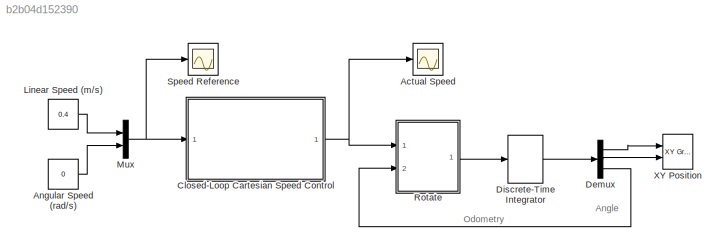
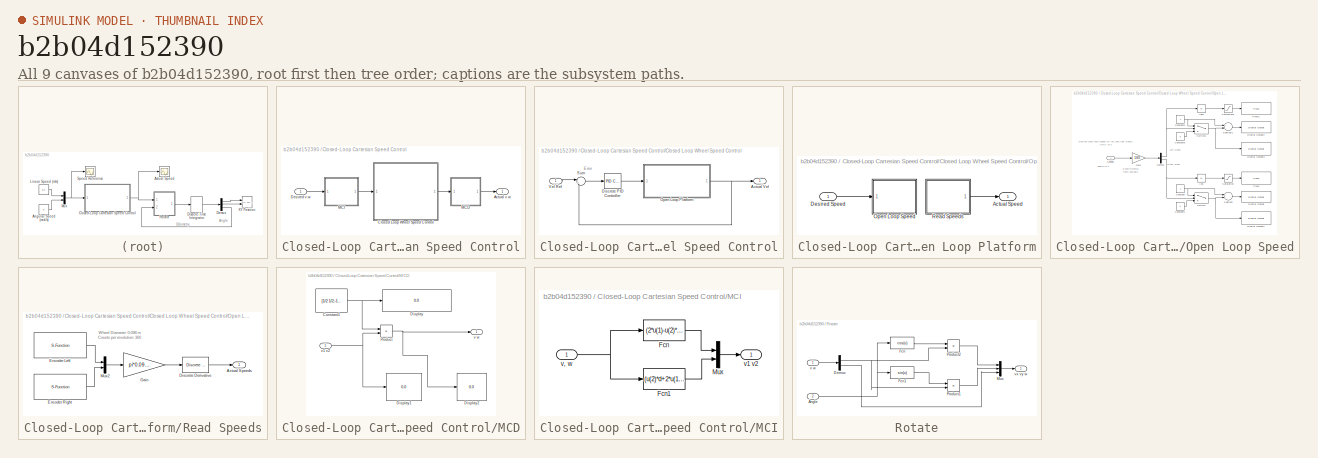
[diagram: thumbnail index - all 9 canvases of the model, root first then tree order]
MODEL slx_b2b04d152390
KIND model
BLOCK [Scope] Actual Speed
  DataFormat = StructureWithTime
  Floating = off
  NumInputPorts = 1
  Ports = [1]
  SampleTime = 0
  SaveName = ScopeData1
  ShowLegends = off
  YMax = 36
  YMin = 34.7
  ZoomMode = yonly
BLOCK [Constant] Angular Speed (rad//s)
  Value = 0
BLOCK [SubSystem] Closed-Loop Cartesian Speed Control
  FunctionWithSeparateData = off
  MaskHideContents = off
  MinAlgLoopOccurrences = off
  Opaque = off
  Ports = [1, 1]
  PropExecContextOutsideSubsystem = off
  RTWSystemCode = Auto
  RequestExecContextInheritance = off
BLOCK [Outport] Closed-Loop Cartesian Speed Control/Actual v w
  IconDisplay = Port number
BLOCK [SubSystem] Closed-Loop Cartesian Speed Control/Closed Loop Wheel Speed Control
  FunctionWithSeparateData = off
  MaskHideContents = off
  MinAlgLoopOccurrences = off
  Opaque = off
  Ports = [1, 1]
  PropExecContextOutsideSubsystem = off
  RTWSystemCode = Auto
  RequestExecContextInheritance = off
BLOCK [Outport] Closed-Loop Cartesian Speed Control/Closed Loop Wheel Speed Control/Actual Vel
  IconDisplay = Port number
BLOCK [Reference] Closed-Loop Cartesian Speed Control/Closed Loop Wheel Speed Control/Discrete PID Controller  REF=simulink/Continuous/PID Controller
  AntiWindupMode = none
  Controller = PID
  D = 0
  DOutDataTypeStr = Inherit: Inherit via internal rule
  DOutMax = []
  DOutMin = []
  DParamDataTypeStr = Inherit: Inherit via internal rule
  DParamMax = []
  DParamMin = []
  ExternalReset = none
  FilterContinuousStateAttributes = ''
  FilterMethod = Forward Euler
  FilterOutDataTypeStr = Inherit: Inherit via internal rule
  FilterOutMax = []
  FilterOutMin = []
  FilterRTWStateStorageClass = Auto
  FilterStateMustResolveToSignalObject = off
  Form = Parallel
  I = 2
  IOutDataTypeStr = Inherit: Inherit via internal rule
  IOutMax = []
  IOutMin = []
  IParamDataTypeStr = Inherit: Inherit via internal rule
  IParamMax = []
  IParamMin = []
  IgnoreLimit = off
  InitialConditionForFilter = 0
  InitialConditionForIntegrator = 0
  InitialConditionSource = internal
  IntegratorContinuousStateAttributes = ''
  IntegratorMethod = Forward Euler
  IntegratorOutDataTypeStr = Inherit: Inherit via internal rule
  IntegratorOutMax = []
  IntegratorOutMin = []
  IntegratorRTWStateStorageClass = Auto
  IntegratorStateMustResolveToSignalObject = off
  Kb = 1
  KbOutDataTypeStr = Inherit: Inherit via internal rule
  KbOutMax = []
  KbOutMin = []
  KbParamDataTypeStr = Inherit: Inherit via internal rule
  KbParamMax = []
  KbParamMin = []
  Kt = 1
  KtOutDataTypeStr = Inherit: Inherit via internal rule
  KtOutMax = []
  KtOutMin = []
  KtParamDataTypeStr = Inherit: Inherit via internal rule
  KtParamMax = []
  KtParamMin = []
  LimitOutput = off
  LinearizeAsGain = off
  LockScale = off
  LowerSaturationLimit = -inf
  N = 100
  NOutDataTypeStr = Inherit: Inherit via internal rule
  NOutMax = []
  NOutMin = []
  NParamDataTypeStr = Inherit: Inherit via internal rule
  NParamMax = []
  NParamMin = []
  P = 1
  POutDataTypeStr = Inherit: Inherit via internal rule
  POutMax = []
  POutMin = []
  PParamDataTypeStr = Inherit: Inherit via internal rule
  PParamMax = []
  PParamMin = []
  Ports = [1, 1]
  RndMeth = Floor
  SampleTime = -1
  SaturateOnIntegerOverflow = off
  SaturationOutDataTypeStr = Inherit: Same as input
  SaturationOutMax = []
  SaturationOutMin = []
  SourceBlock = simulink/Continuous/PID Controller
  SourceType = PID 1dof
  SumAccumDataTypeStr = Inherit: Inherit via internal rule
  SumDAccumDataTypeStr = Inherit: Inherit via internal rule
  SumDOutDataTypeStr = Inherit: Inherit via internal rule
  SumDOutMax = []
  SumDOutMin = []
  SumI1AccumDataTypeStr = Inherit: Inherit via internal rule
  SumI1OutDataTypeStr = Inherit: Inherit via internal rule
  SumI1OutMax = []
  SumI1OutMin = []
  SumI2AccumDataTypeStr = Inherit: Inherit via internal rule
  SumI2OutDataTypeStr = Inherit: Inherit via internal rule
  SumI2OutMax = []
  SumI2OutMin = []
  SumI3AccumDataTypeStr = Inherit: Inherit via internal rule
  SumI3OutDataTypeStr = Inherit: Inherit via internal rule
  SumI3OutMax = []
  SumI3OutMin = []
  SumOutDataTypeStr = Inherit: Inherit via internal rule
  SumOutMax = []
  SumOutMin = []
  TimeDomain = Discrete-time
  TrackingMode = off
  UpperSaturationLimit = inf
  ZeroCross = on
BLOCK [SubSystem] Closed-Loop Cartesian Speed Control/Closed Loop Wheel Speed Control/Open Loop Platform
  FunctionWithSeparateData = off
  MaskHideContents = off
  MinAlgLoopOccurrences = off
  Opaque = off
  Ports = [1, 1]
  PropExecContextOutsideSubsystem = off
  RTWSystemCode = Auto
  RequestExecContextInheritance = off
BLOCK [Outport] Closed-Loop Cartesian Speed Control/Closed Loop Wheel Speed Control/Open Loop Platform/Actual Speed
  IconDisplay = Port number
BLOCK [Inport] Closed-Loop Cartesian Speed Control/Closed Loop Wheel Speed Control/Open Loop Platform/Desired Speed
  IconDisplay = Port number
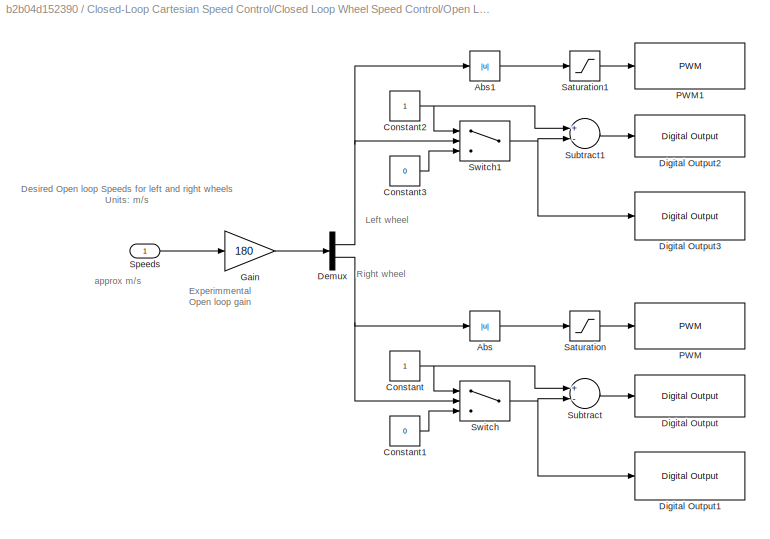
BLOCK [SubSystem] Closed-Loop Cartesian Speed Control/Closed Loop Wheel Speed Control/Open Loop Platform/Open Loop Speed
  FunctionWithSeparateData = off
  MaskHideContents = off
  MinAlgLoopOccurrences = off
  Opaque = off
  Ports = [1]
  PropExecContextOutsideSubsystem = off
  RTWSystemCode = Auto
  RequestExecContextInheritance = off
BLOCK [Abs] Closed-Loop Cartesian Speed Control/Closed Loop Wheel Speed Control/Open Loop Platform/Open Loop Speed/Abs
  SaturateOnIntegerOverflow = off
BLOCK [Abs] Closed-Loop Cartesian Speed Control/Closed Loop Wheel Speed Control/Open Loop Platform/Open Loop Speed/Abs1
  SaturateOnIntegerOverflow = off
BLOCK [Constant] Closed-Loop Cartesian Speed Control/Closed Loop Wheel Speed Control/Open Loop Platform/Open Loop Speed/Constant
BLOCK [Constant] Closed-Loop Cartesian Speed Control/Closed Loop Wheel Speed Control/Open Loop Platform/Open Loop Speed/Constant1
  Value = 0
BLOCK [Constant] Closed-Loop Cartesian Speed Control/Closed Loop Wheel Speed Control/Open Loop Platform/Open Loop Speed/Constant2
BLOCK [Constant] Closed-Loop Cartesian Speed Control/Closed Loop Wheel Speed Control/Open Loop Platform/Open Loop Speed/Constant3
  Value = 0
BLOCK [Demux] Closed-Loop Cartesian Speed Control/Closed Loop Wheel Speed Control/Open Loop Platform/Open Loop Speed/Demux
  DisplayOption = bar
  Outputs = 2
  Ports = [1, 2]
BLOCK [Reference] Closed-Loop Cartesian Speed Control/Closed Loop Wheel Speed Control/Open Loop Platform/Open Loop Speed/Digital Output  REF=arduinolib/Digital Output
  Ports = [1]
  SourceBlock = arduinolib/Digital Output
  SourceType = Arduino Digital Output
  pinNumber = 11
BLOCK [Reference] Closed-Loop Cartesian Speed Control/Closed Loop Wheel Speed Control/Open Loop Platform/Open Loop Speed/Digital Output1  REF=arduinolib/Digital Output
  Ports = [1]
  SourceBlock = arduinolib/Digital Output
  SourceType = Arduino Digital Output
  pinNumber = 12
BLOCK [Reference] Closed-Loop Cartesian Speed Control/Closed Loop Wheel Speed Control/Open Loop Platform/Open Loop Speed/Digital Output2  REF=arduinolib/Digital Output
  Ports = [1]
  SourceBlock = arduinolib/Digital Output
  SourceType = Arduino Digital Output
  pinNumber = 9
BLOCK [Reference] Closed-Loop Cartesian Speed Control/Closed Loop Wheel Speed Control/Open Loop Platform/Open Loop Speed/Digital Output3  REF=arduinolib/Digital Output
  Ports = [1]
  SourceBlock = arduinolib/Digital Output
  SourceType = Arduino Digital Output
  pinNumber = 10
BLOCK [Gain] Closed-Loop Cartesian Speed Control/Closed Loop Wheel Speed Control/Open Loop Platform/Open Loop Speed/Gain
  Gain = 180
  OutDataTypeStr = Inherit: Inherit via internal rule
  ParamDataTypeStr = Inherit: Inherit via internal rule
  SaturateOnIntegerOverflow = off
BLOCK [Reference] Closed-Loop Cartesian Speed Control/Closed Loop Wheel Speed Control/Open Loop Platform/Open Loop Speed/PWM  REF=arduinolib/PWM
  Ports = [1]
  SourceBlock = arduinolib/PWM
  SourceType = Arduino PWM
  pinNumber = 13
BLOCK [Reference] Closed-Loop Cartesian Speed Control/Closed Loop Wheel Speed Control/Open Loop Platform/Open Loop Speed/PWM1  REF=arduinolib/PWM
  Ports = [1]
  SourceBlock = arduinolib/PWM
  SourceType = Arduino PWM
  pinNumber = 8
BLOCK [Saturate] Closed-Loop Cartesian Speed Control/Closed Loop Wheel Speed Control/Open Loop Platform/Open Loop Speed/Saturation
  InputPortMap = u0
  LowerLimit = 0
  OutDataTypeStr = uint8
  Ports = [1, 1]
  UpperLimit = 255
BLOCK [Saturate] Closed-Loop Cartesian Speed Control/Closed Loop Wheel Speed Control/Open Loop Platform/Open Loop Speed/Saturation1
  InputPortMap = u0
  LowerLimit = 0
  OutDataTypeStr = uint8
  Ports = [1, 1]
  UpperLimit = 255
BLOCK [Inport] Closed-Loop Cartesian Speed Control/Closed Loop Wheel Speed Control/Open Loop Platform/Open Loop Speed/Speeds
  IconDisplay = Port number
BLOCK [Sum] Closed-Loop Cartesian Speed Control/Closed Loop Wheel Speed Control/Open Loop Platform/Open Loop Speed/Subtract
  InputSameDT = off
  Inputs = +-
  OutDataTypeStr = Inherit: Inherit via internal rule
  Ports = [2, 1]
  SaturateOnIntegerOverflow = off
BLOCK [Sum] Closed-Loop Cartesian Speed Control/Closed Loop Wheel Speed Control/Open Loop Platform/Open Loop Speed/Subtract1
  InputSameDT = off
  Inputs = +-
  OutDataTypeStr = Inherit: Inherit via internal rule
  Ports = [2, 1]
  SaturateOnIntegerOverflow = off
BLOCK [Switch] Closed-Loop Cartesian Speed Control/Closed Loop Wheel Speed Control/Open Loop Platform/Open Loop Speed/Switch
  Criteria = u2 > Threshold
  InputSameDT = off
  SaturateOnIntegerOverflow = off
BLOCK [Switch] Closed-Loop Cartesian Speed Control/Closed Loop Wheel Speed Control/Open Loop Platform/Open Loop Speed/Switch1
  Criteria = u2 > Threshold
  InputSameDT = off
  SaturateOnIntegerOverflow = off
BLOCK [SubSystem] Closed-Loop Cartesian Speed Control/Closed Loop Wheel Speed Control/Open Loop Platform/Read Speeds
  FunctionWithSeparateData = off
  MaskHideContents = off
  MinAlgLoopOccurrences = off
  Opaque = off
  Ports = [0, 1]
  PropExecContextOutsideSubsystem = off
  RTWSystemCode = Auto
  RequestExecContextInheritance = off
BLOCK [Outport] Closed-Loop Cartesian Speed Control/Closed Loop Wheel Speed Control/Open Loop Platform/Read Speeds/Actual Speeds
  IconDisplay = Port number
BLOCK [Reference] Closed-Loop Cartesian Speed Control/Closed Loop Wheel Speed Control/Open Loop Platform/Read Speeds/Discrete Derivative  REF=simulink/Discrete/Discrete Derivative
  DoSatur = off
  ICPrevScaledInput = 0.0
  InputProcessing = Inherited
  LockScale = off
  OutDataType = fixdt(1, 16)
  OutDataTypeStr = Inherit: Inherit via internal rule
  OutMax = []
  OutMin = []
  OutScaling = 2^-10
  OutputDataTypeScalingMode = Inherit via internal rule
  Ports = [1, 1]
  RndMeth = Floor
  SourceBlock = simulink/Discrete/Discrete Derivative
  SourceType = Discrete Derivative
  gainval = 1.0
BLOCK [S-Function] Closed-Loop Cartesian Speed Control/Closed Loop Wheel Speed Control/Open Loop Platform/Read Speeds/Encoder Left
  CopyFcn = set_param(gcbh,'LinkStatus','none')
  EnableBusSupport = off
  FunctionName = sfcn_encoder
  InitFcn = try, set_param(gcb,'FunctionName','sfcn_encoder'), end
  OpenFcn = sfunctionwizard(gcbh)
  Parameters = uint8(0),uint8(3),uint8(2)
  Ports = [0, 1]
  PreSaveFcn = try, set_param(gcb,'FunctionName','sfcn_encoder'), end
  SFunctionModules = sfcn_encoder_wrapper
BLOCK [S-Function] Closed-Loop Cartesian Speed Control/Closed Loop Wheel Speed Control/Open Loop Platform/Read Speeds/Encoder Right
  CopyFcn = set_param(gcbh,'LinkStatus','none')
  EnableBusSupport = off
  FunctionName = sfcn_encoder
  InitFcn = try, set_param(gcb,'FunctionName','sfcn_encoder'), end
  OpenFcn = sfunctionwizard(gcbh)
  Parameters = uint8(1),uint8(19),uint8(18)
  Ports = [0, 1]
  PreSaveFcn = try, set_param(gcb,'FunctionName','sfcn_encoder'), end
  SFunctionModules = sfcn_encoder_wrapper
BLOCK [Gain] Closed-Loop Cartesian Speed Control/Closed Loop Wheel Speed Control/Open Loop Platform/Read Speeds/Gain
  Gain = pi*0.098/360
  OutDataTypeStr = double
  ParamDataTypeStr = Inherit: Inherit via internal rule
  SaturateOnIntegerOverflow = off
BLOCK [Mux] Closed-Loop Cartesian Speed Control/Closed Loop Wheel Speed Control/Open Loop Platform/Read Speeds/Mux2
  DisplayOption = bar
  Inputs = 2
  Ports = [2, 1]
BLOCK [Sum] Closed-Loop Cartesian Speed Control/Closed Loop Wheel Speed Control/Sum
  IconShape = round
  InputSameDT = off
  Inputs = |+-
  OutDataTypeStr = Inherit: Inherit via internal rule
  Ports = [2, 1]
  SaturateOnIntegerOverflow = off
BLOCK [Inport] Closed-Loop Cartesian Speed Control/Closed Loop Wheel Speed Control/Vel Ref
  IconDisplay = Port number
BLOCK [Inport] Closed-Loop Cartesian Speed Control/Desired v w
  IconDisplay = Port number
BLOCK [SubSystem] Closed-Loop Cartesian Speed Control/MCD
  FunctionWithSeparateData = off
  MaskHideContents = off
  MinAlgLoopOccurrences = off
  Opaque = off
  Ports = [1, 1]
  PropExecContextOutsideSubsystem = off
  RTWSystemCode = Auto
  RequestExecContextInheritance = off
BLOCK [Constant] Closed-Loop Cartesian Speed Control/MCD/Constant1
  Value = [1/2 1/2;-1/d 1/d]
  VectorParams1D = off
BLOCK [Display] Closed-Loop Cartesian Speed Control/MCD/Display
  Decimation = 1
  Ports = [1]
BLOCK [Display] Closed-Loop Cartesian Speed Control/MCD/Display1
  Decimation = 1
  Ports = [1]
BLOCK [Display] Closed-Loop Cartesian Speed Control/MCD/Display2
  Decimation = 1
  Ports = [1]
BLOCK [Product] Closed-Loop Cartesian Speed Control/MCD/Product
  InputSameDT = off
  Multiplication = Matrix(*)
  OutDataTypeStr = Inherit: Inherit via internal rule
  Ports = [2, 1]
  RndMeth = Floor
  SaturateOnIntegerOverflow = off
BLOCK [Outport] Closed-Loop Cartesian Speed Control/MCD/v w
  IconDisplay = Port number
BLOCK [Inport] Closed-Loop Cartesian Speed Control/MCD/v1 v2
  IconDisplay = Port number
BLOCK [SubSystem] Closed-Loop Cartesian Speed Control/MCI
  FunctionWithSeparateData = off
  MaskHideContents = off
  MinAlgLoopOccurrences = off
  Opaque = off
  Ports = [1, 1]
  PropExecContextOutsideSubsystem = off
  RTWSystemCode = Auto
  RequestExecContextInheritance = off
BLOCK [Fcn] Closed-Loop Cartesian Speed Control/MCI/Fcn
  Expr = (2*u(1)-u(2)*d)/2
BLOCK [Fcn] Closed-Loop Cartesian Speed Control/MCI/Fcn1
  Expr = (u(2)*d+2*u(1))/2
BLOCK [Mux] Closed-Loop Cartesian Speed Control/MCI/Mux
  DisplayOption = bar
  Inputs = 2
  Ports = [2, 1]
BLOCK [Inport] Closed-Loop Cartesian Speed Control/MCI/v, w
  IconDisplay = Port number
BLOCK [Outport] Closed-Loop Cartesian Speed Control/MCI/v1 v2
  IconDisplay = Port number
BLOCK [Demux] Demux
  DisplayOption = bar
  Outputs = 3
  Ports = [1, 3]
BLOCK [DiscreteIntegrator] Discrete-Time Integrator
  ICPrevOutput = DiscIntNeverNeededParam
  ICPrevScaledInput = DiscIntNeverNeededParam
  Ports = [1, 1]
  SampleTime = -1
BLOCK [Constant] Linear Speed (m//s)
  Value = 0.4
BLOCK [Mux] Mux
  DisplayOption = bar
  Inputs = 2
  Ports = [2, 1]
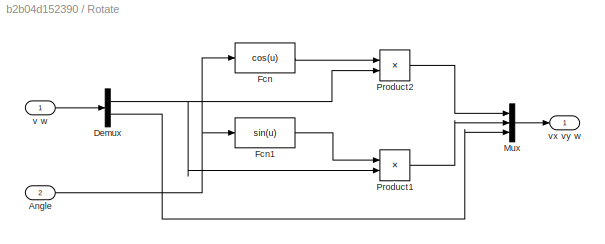
BLOCK [SubSystem] Rotate
  FunctionWithSeparateData = off
  MaskHideContents = off
  MinAlgLoopOccurrences = off
  Opaque = off
  Ports = [2, 1]
  PropExecContextOutsideSubsystem = off
  RTWSystemCode = Auto
  RequestExecContextInheritance = off
BLOCK [Inport] Rotate/Angle
  IconDisplay = Port number
  Port = 2
BLOCK [Demux] Rotate/Demux
  DisplayOption = bar
  Outputs = 2
  Ports = [1, 2]
BLOCK [Fcn] Rotate/Fcn
  Expr = cos(u)
BLOCK [Fcn] Rotate/Fcn1
  Expr = sin(u)
BLOCK [Mux] Rotate/Mux
  DisplayOption = bar
  Inputs = 3
  Ports = [3, 1]
BLOCK [Product] Rotate/Product1
  InputSameDT = off
  OutDataTypeStr = Inherit: Inherit via internal rule
  Ports = [2, 1]
  RndMeth = Floor
  SaturateOnIntegerOverflow = off
BLOCK [Product] Rotate/Product2
  InputSameDT = off
  OutDataTypeStr = Inherit: Inherit via internal rule
  Ports = [2, 1]
  RndMeth = Floor
  SaturateOnIntegerOverflow = off
BLOCK [Inport] Rotate/v w
  IconDisplay = Port number
BLOCK [Outport] Rotate/vx vy w
  IconDisplay = Port number
BLOCK [Scope] Speed Reference
  DataFormat = StructureWithTime
  Floating = off
  NumInputPorts = 1
  Ports = [1]
  SampleTime = 0
  SaveName = ScopeData2
  ShowLegends = off
  YMax = 36
  YMin = 34.7
  ZoomMode = yonly
BLOCK [Reference] XY Position  REF=simulink/Sinks/XY Graph
  Ports = [2]
  SourceBlock = simulink/Sinks/XY Graph
  SourceType = XY scope.
  st = -1
  xmax = 100
  xmin = -100
  ymax = 100
  ymin = -100
ANNOTATION (root): Angle
ANNOTATION (root): Odometry
ANNOTATION Closed-Loop Cartesian Speed Control/Closed Loop Wheel Speed Control: Error
ANNOTATION Closed-Loop Cartesian Speed Control/Closed Loop Wheel Speed Control/Open Loop Platform/Open Loop Speed: Desired Open loop Speeds for left and right wheels Units: m/s
ANNOTATION Closed-Loop Cartesian Speed Control/Closed Loop Wheel Speed Control/Open Loop Platform/Open Loop Speed: Experimmental Open loop gain
ANNOTATION Closed-Loop Cartesian Speed Control/Closed Loop Wheel Speed Control/Open Loop Platform/Open Loop Speed: Left wheel
ANNOTATION Closed-Loop Cartesian Speed Control/Closed Loop Wheel Speed Control/Open Loop Platform/Open Loop Speed: Right wheel
ANNOTATION Closed-Loop Cartesian Speed Control/Closed Loop Wheel Speed Control/Open Loop Platform/Open Loop Speed: approx m/s
ANNOTATION Closed-Loop Cartesian Speed Control/Closed Loop Wheel Speed Control/Open Loop Platform/Read Speeds: Wheel Diameter: 0.098 m Counts per revolution: 360
LINE Angular Speed (rad//s):1 -> Mux:2
LINE Closed-Loop Cartesian Speed Control/Closed Loop Wheel Speed Control/Discrete PID Controller:1 -> Closed-Loop Cartesian Speed Control/Closed Loop Wheel Speed Control/Open Loop Platform:1
LINE Closed-Loop Cartesian Speed Control/Closed Loop Wheel Speed Control/Open Loop Platform/Desired Speed:1 -> Closed-Loop Cartesian Speed Control/Closed Loop Wheel Speed Control/Open Loop Platform/Open Loop Speed:1
LINE Closed-Loop Cartesian Speed Control/Closed Loop Wheel Speed Control/Open Loop Platform/Open Loop Speed/Abs1:1 -> Closed-Loop Cartesian Speed Control/Closed Loop Wheel Speed Control/Open Loop Platform/Open Loop Speed/Saturation1:1
LINE Closed-Loop Cartesian Speed Control/Closed Loop Wheel Speed Control/Open Loop Platform/Open Loop Speed/Abs:1 -> Closed-Loop Cartesian Speed Control/Closed Loop Wheel Speed Control/Open Loop Platform/Open Loop Speed/Saturation:1
LINE Closed-Loop Cartesian Speed Control/Closed Loop Wheel Speed Control/Open Loop Platform/Open Loop Speed/Constant1:1 -> Closed-Loop Cartesian Speed Control/Closed Loop Wheel Speed Control/Open Loop Platform/Open Loop Speed/Switch:3
NET Closed-Loop Cartesian Speed Control/Closed Loop Wheel Speed Control/Open Loop Platform/Open Loop Speed/Constant2:1 -> Closed-Loop Cartesian Speed Control/Closed Loop Wheel Speed Control/Open Loop Platform/Open Loop Speed/Subtract1:1, Closed-Loop Cartesian Speed Control/Closed Loop Wheel Speed Control/Open Loop Platform/Open Loop Speed/Switch1:1
LINE Closed-Loop Cartesian Speed Control/Closed Loop Wheel Speed Control/Open Loop Platform/Open Loop Speed/Constant3:1 -> Closed-Loop Cartesian Speed Control/Closed Loop Wheel Speed Control/Open Loop Platform/Open Loop Speed/Switch1:3
NET Closed-Loop Cartesian Speed Control/Closed Loop Wheel Speed Control/Open Loop Platform/Open Loop Speed/Constant:1 -> Closed-Loop Cartesian Speed Control/Closed Loop Wheel Speed Control/Open Loop Platform/Open Loop Speed/Subtract:1, Closed-Loop Cartesian Speed Control/Closed Loop Wheel Speed Control/Open Loop Platform/Open Loop Speed/Switch:1
NET Closed-Loop Cartesian Speed Control/Closed Loop Wheel Speed Control/Open Loop Platform/Open Loop Speed/Demux:1 -> Closed-Loop Cartesian Speed Control/Closed Loop Wheel Speed Control/Open Loop Platform/Open Loop Speed/Abs1:1, Closed-Loop Cartesian Speed Control/Closed Loop Wheel Speed Control/Open Loop Platform/Open Loop Speed/Switch1:2
NET Closed-Loop Cartesian Speed Control/Closed Loop Wheel Speed Control/Open Loop Platform/Open Loop Speed/Demux:2 -> Closed-Loop Cartesian Speed Control/Closed Loop Wheel Speed Control/Open Loop Platform/Open Loop Speed/Abs:1, Closed-Loop Cartesian Speed Control/Closed Loop Wheel Speed Control/Open Loop Platform/Open Loop Speed/Switch:2
LINE Closed-Loop Cartesian Speed Control/Closed Loop Wheel Speed Control/Open Loop Platform/Open Loop Speed/Gain:1 -> Closed-Loop Cartesian Speed Control/Closed Loop Wheel Speed Control/Open Loop Platform/Open Loop Speed/Demux:1
LINE Closed-Loop Cartesian Speed Control/Closed Loop Wheel Speed Control/Open Loop Platform/Open Loop Speed/Saturation1:1 -> Closed-Loop Cartesian Speed Control/Closed Loop Wheel Speed Control/Open Loop Platform/Open Loop Speed/PWM1:1
LINE Closed-Loop Cartesian Speed Control/Closed Loop Wheel Speed Control/Open Loop Platform/Open Loop Speed/Saturation:1 -> Closed-Loop Cartesian Speed Control/Closed Loop Wheel Speed Control/Open Loop Platform/Open Loop Speed/PWM:1
LINE Closed-Loop Cartesian Speed Control/Closed Loop Wheel Speed Control/Open Loop Platform/Open Loop Speed/Speeds:1 -> Closed-Loop Cartesian Speed Control/Closed Loop Wheel Speed Control/Open Loop Platform/Open Loop Speed/Gain:1
LINE Closed-Loop Cartesian Speed Control/Closed Loop Wheel Speed Control/Open Loop Platform/Open Loop Speed/Subtract1:1 -> Closed-Loop Cartesian Speed Control/Closed Loop Wheel Speed Control/Open Loop Platform/Open Loop Speed/Digital Output2:1
LINE Closed-Loop Cartesian Speed Control/Closed Loop Wheel Speed Control/Open Loop Platform/Open Loop Speed/Subtract:1 -> Closed-Loop Cartesian Speed Control/Closed Loop Wheel Speed Control/Open Loop Platform/Open Loop Speed/Digital Output:1
NET Closed-Loop Cartesian Speed Control/Closed Loop Wheel Speed Control/Open Loop Platform/Open Loop Speed/Switch1:1 -> Closed-Loop Cartesian Speed Control/Closed Loop Wheel Speed Control/Open Loop Platform/Open Loop Speed/Digital Output3:1, Closed-Loop Cartesian Speed Control/Closed Loop Wheel Speed Control/Open Loop Platform/Open Loop Speed/Subtract1:2
NET Closed-Loop Cartesian Speed Control/Closed Loop Wheel Speed Control/Open Loop Platform/Open Loop Speed/Switch:1 -> Closed-Loop Cartesian Speed Control/Closed Loop Wheel Speed Control/Open Loop Platform/Open Loop Speed/Digital Output1:1, Closed-Loop Cartesian Speed Control/Closed Loop Wheel Speed Control/Open Loop Platform/Open Loop Speed/Subtract:2
LINE Closed-Loop Cartesian Speed Control/Closed Loop Wheel Speed Control/Open Loop Platform/Read Speeds/Discrete Derivative:1 -> Closed-Loop Cartesian Speed Control/Closed Loop Wheel Speed Control/Open Loop Platform/Read Speeds/Actual Speeds:1
LINE Closed-Loop Cartesian Speed Control/Closed Loop Wheel Speed Control/Open Loop Platform/Read Speeds/Encoder Left:1 -> Closed-Loop Cartesian Speed Control/Closed Loop Wheel Speed Control/Open Loop Platform/Read Speeds/Mux2:1
LINE Closed-Loop Cartesian Speed Control/Closed Loop Wheel Speed Control/Open Loop Platform/Read Speeds/Encoder Right:1 -> Closed-Loop Cartesian Speed Control/Closed Loop Wheel Speed Control/Open Loop Platform/Read Speeds/Mux2:2
LINE Closed-Loop Cartesian Speed Control/Closed Loop Wheel Speed Control/Open Loop Platform/Read Speeds/Gain:1 -> Closed-Loop Cartesian Speed Control/Closed Loop Wheel Speed Control/Open Loop Platform/Read Speeds/Discrete Derivative:1
LINE Closed-Loop Cartesian Speed Control/Closed Loop Wheel Speed Control/Open Loop Platform/Read Speeds/Mux2:1 -> Closed-Loop Cartesian Speed Control/Closed Loop Wheel Speed Control/Open Loop Platform/Read Speeds/Gain:1
LINE Closed-Loop Cartesian Speed Control/Closed Loop Wheel Speed Control/Open Loop Platform/Read Speeds:1 -> Closed-Loop Cartesian Speed Control/Closed Loop Wheel Speed Control/Open Loop Platform/Actual Speed:1
NET Closed-Loop Cartesian Speed Control/Closed Loop Wheel Speed Control/Open Loop Platform:1 -> Closed-Loop Cartesian Speed Control/Closed Loop Wheel Speed Control/Actual Vel:1, Closed-Loop Cartesian Speed Control/Closed Loop Wheel Speed Control/Sum:2
LINE Closed-Loop Cartesian Speed Control/Closed Loop Wheel Speed Control/Sum:1 -> Closed-Loop Cartesian Speed Control/Closed Loop Wheel Speed Control/Discrete PID Controller:1
LINE Closed-Loop Cartesian Speed Control/Closed Loop Wheel Speed Control/Vel Ref:1 -> Closed-Loop Cartesian Speed Control/Closed Loop Wheel Speed Control/Sum:1
LINE Closed-Loop Cartesian Speed Control/Closed Loop Wheel Speed Control:1 -> Closed-Loop Cartesian Speed Control/MCD:1
LINE Closed-Loop Cartesian Speed Control/Desired v w:1 -> Closed-Loop Cartesian Speed Control/MCI:1
NET Closed-Loop Cartesian Speed Control/MCD/Constant1:1 -> Closed-Loop Cartesian Speed Control/MCD/Display:1, Closed-Loop Cartesian Speed Control/MCD/Product:1
NET Closed-Loop Cartesian Speed Control/MCD/Product:1 -> Closed-Loop Cartesian Speed Control/MCD/Display2:1, Closed-Loop Cartesian Speed Control/MCD/v w:1
NET Closed-Loop Cartesian Speed Control/MCD/v1 v2:1 -> Closed-Loop Cartesian Speed Control/MCD/Display1:1, Closed-Loop Cartesian Speed Control/MCD/Product:2
LINE Closed-Loop Cartesian Speed Control/MCD:1 -> Closed-Loop Cartesian Speed Control/Actual v w:1
LINE Closed-Loop Cartesian Speed Control/MCI/Fcn1:1 -> Closed-Loop Cartesian Speed Control/MCI/Mux:2
LINE Closed-Loop Cartesian Speed Control/MCI/Fcn:1 -> Closed-Loop Cartesian Speed Control/MCI/Mux:1
LINE Closed-Loop Cartesian Speed Control/MCI/Mux:1 -> Closed-Loop Cartesian Speed Control/MCI/v1 v2:1
NET Closed-Loop Cartesian Speed Control/MCI/v, w:1 -> Closed-Loop Cartesian Speed Control/MCI/Fcn1:1, Closed-Loop Cartesian Speed Control/MCI/Fcn:1
LINE Closed-Loop Cartesian Speed Control/MCI:1 -> Closed-Loop Cartesian Speed Control/Closed Loop Wheel Speed Control:1
NET Closed-Loop Cartesian Speed Control:1 -> Actual Speed:1, Rotate:1
LINE Demux:1 -> XY Position:1
LINE Demux:2 -> XY Position:2
LINE Demux:3 -> Rotate:2
LINE Discrete-Time Integrator:1 -> Demux:1
LINE Linear Speed (m//s):1 -> Mux:1
NET Mux:1 -> Closed-Loop Cartesian Speed Control:1, Speed Reference:1
NET Rotate/Angle:1 -> Rotate/Fcn1:1, Rotate/Fcn:1
NET Rotate/Demux:1 -> Rotate/Product1:2, Rotate/Product2:2
LINE Rotate/Demux:2 -> Rotate/Mux:3
LINE Rotate/Fcn1:1 -> Rotate/Product1:1
LINE Rotate/Fcn:1 -> Rotate/Product2:1
LINE Rotate/Mux:1 -> Rotate/vx vy w:1
LINE Rotate/Product1:1 -> Rotate/Mux:2
LINE Rotate/Product2:1 -> Rotate/Mux:1
LINE Rotate/v w:1 -> Rotate/Demux:1
LINE Rotate:1 -> Discrete-Time Integrator:1
note: NET lines group one-source signal fan-out (src -> all destinations, sorted); 1:1 wires keep LINE
